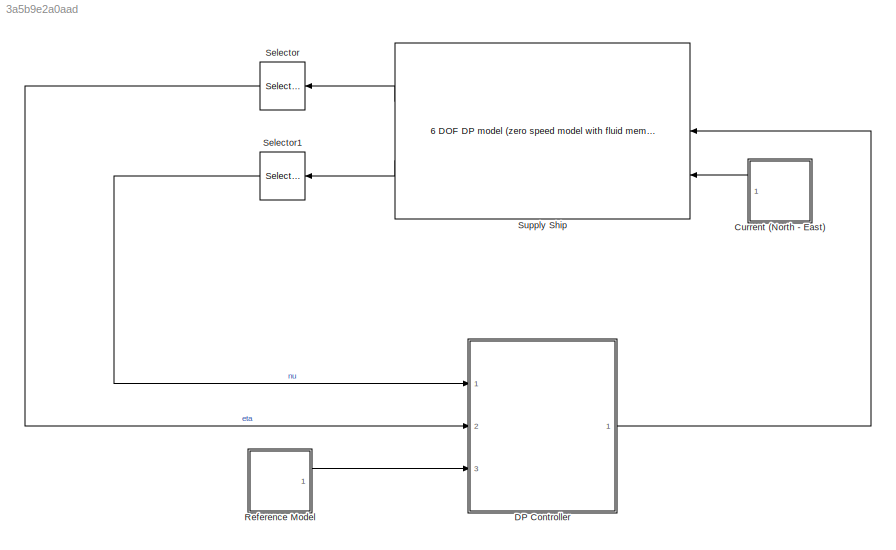
MODEL slx_3a5b9e2a0aad
KIND model
CONFIG AbsTol = auto
CONFIG EnableMultiTasking = off
CONFIG FixedStep = auto
CONFIG MaxStep = auto
CONFIG MinStep = auto
CONFIG RelTol = 1e-3
CONFIG SampleTimeConstraint = Unconstrained
CONFIG Solver = VariableStepAuto
CONFIG SolverName = VariableStepAuto
CONFIG StartTime = 0.0
CONFIG StopTime = 10
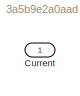
BLOCK [SubSystem] Current (North - East)
  Ports = [0, 1]
  RequestExecContextInheritance = off
BLOCK [Outport] Current (North - East)/Current
  IconDisplay = Port number
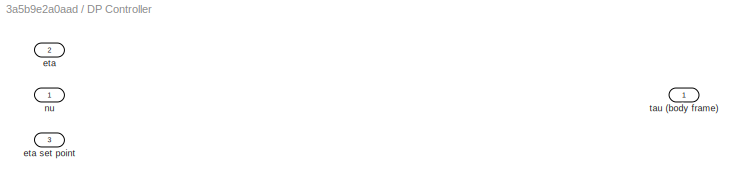
BLOCK [SubSystem] DP Controller
  Ports = [3, 1]
  RequestExecContextInheritance = off
BLOCK [Inport] DP Controller/eta
  IconDisplay = Port number
  Port = 2
BLOCK [Inport] DP Controller/eta set point
  IconDisplay = Port number
  Port = 3
BLOCK [Inport] DP Controller/nu
  IconDisplay = Port number
BLOCK [Outport] DP Controller/tau (body frame)
  IconDisplay = Port number
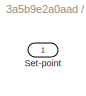
BLOCK [SubSystem] Reference Model
  Ports = [0, 1]
  RequestExecContextInheritance = off
BLOCK [Outport] Reference Model/Set-point
  IconDisplay = Port number
BLOCK [Selector] Selector
  IndexOptions = Index vector (dialog)
  Indices = [1 2 6]
  InputPortWidth = 6
  OutputSizes = 1
  Ports = [1, 1]
BLOCK [Selector] Selector1
  IndexOptions = Index vector (dialog)
  Indices = [1 2 6]
  InputPortWidth = 6
  OutputSizes = 1
  Ports = [1, 1]
BLOCK [Reference] Supply Ship  REF=marine_hydro/Hydro Library/6 DOF DP model
 (zero speed model with fluid memory)
  Ports = [3, 2]
  SourceBlock = marine_hydro/Hydro Library/6 DOF DP model\n (zero speed model with fluid memory)
  SourceProductName = MSS Hydro
  SourceType = 6 DOF zero speed model
LINE Current (North - East):1 -> Supply Ship:3
LINE DP Controller:1 -> Supply Ship:2
LINE Reference Model:1 -> DP Controller:3
LINE Selector1:1 -> DP Controller:1
LINE Selector:1 -> DP Controller:2
LINE Supply Ship:1 -> Selector:1
LINE Supply Ship:2 -> Selector1:1
